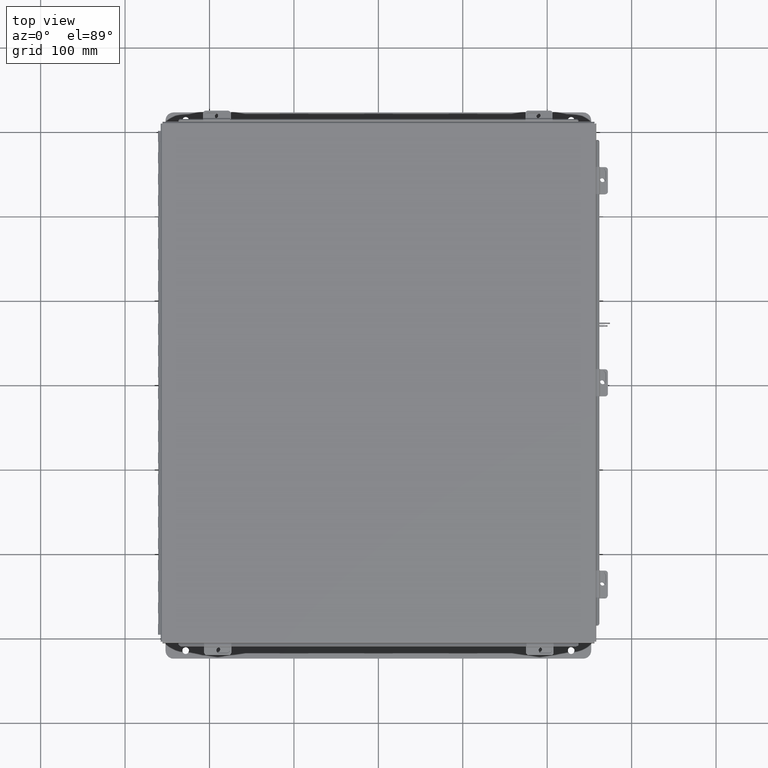
[diagram: clean part render]
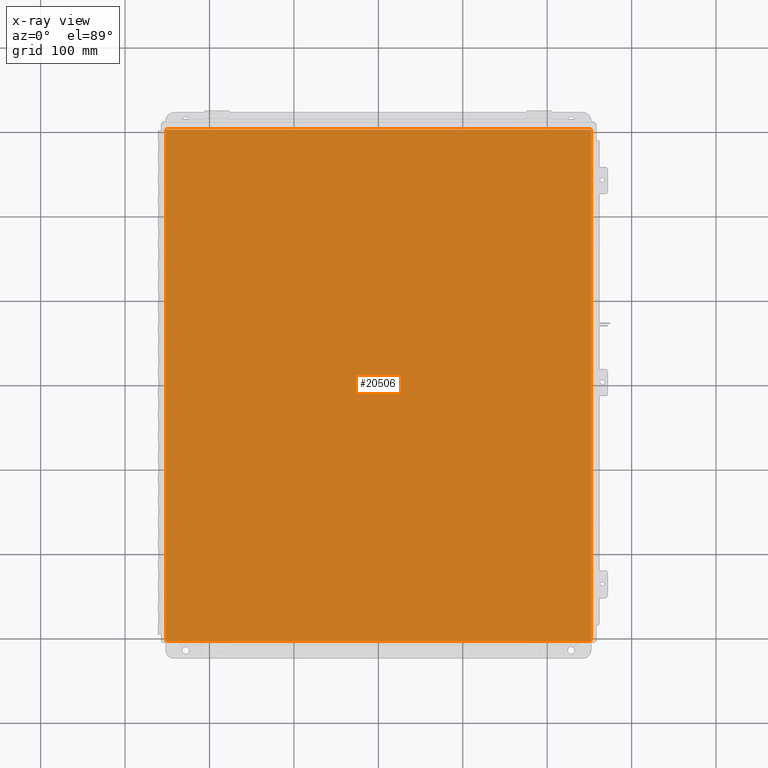
[diagram: x-ray — body ghosted, one internal face saturated and labeled with its STEP entity id]
A machine part, top view, then the same camera in x-ray: the body is ghosted and one INTERNAL B-rep face — a face not visible from any outside direction — is saturated and labeled: STEP entity #20506.
In plain terms, the highlighted planar face has unit normal (0, 0, -1).
Its self-contained STEP definition (entity closure, byte-faithful):
#657 = VECTOR ( 'NONE', #3233, 39.37007874015748100 ) ;
#1238 = CARTESIAN_POINT ( 'NONE',  ( 9.912300000000000100, 11.92529999999999600, 5.122214988120493500E-017 ) ) ;
#2686 = CARTESIAN_POINT ( 'NONE',  ( -9.912300000000000100, -11.92529999999999600, 5.122214988120493500E-017 ) ) ;
#3204 = DIRECTION ( 'NONE',  ( 0.0000000000000000000, 0.0000000000000000000, -1.000000000000000000 ) ) ;
#3233 = DIRECTION ( 'NONE',  ( -1.000000000000000000, -0.0000000000000000000, -0.0000000000000000000 ) ) ;
#3677 = FACE_OUTER_BOUND ( 'NONE', #4624, .T. ) ;
#4086 = VERTEX_POINT ( 'NONE', #22223 ) ;
#4624 = EDGE_LOOP ( 'NONE', ( #13929, #9870, #11960, #23928 ) ) ;
#4681 = EDGE_CURVE ( 'NONE', #17327, #4086, #8785, .T. ) ;
#4848 = EDGE_CURVE ( 'NONE', #5619, #4086, #10290, .T. ) ;
#5619 = VERTEX_POINT ( 'NONE', #14523 ) ;
#5722 = LINE ( 'NONE', #10796, #657 ) ;
#6150 = CARTESIAN_POINT ( 'NONE',  ( -9.912300000000000100, 11.92529999999999600, 5.122214988120493500E-017 ) ) ;
#6294 = EDGE_CURVE ( 'NONE', #5619, #11032, #5722, .T. ) ;
#6403 = VECTOR ( 'NONE', #9584, 39.37007874015748100 ) ;
#8188 = VECTOR ( 'NONE', #13692, 39.37007874015748100 ) ;
#8785 = LINE ( 'NONE', #14797, #8188 ) ;
#9584 = DIRECTION ( 'NONE',  ( -0.0000000000000000000, 1.000000000000000000, -0.0000000000000000000 ) ) ;
#9870 = ORIENTED_EDGE ( 'NONE', *, *, #6294, .T. ) ;
#10290 = LINE ( 'NONE', #1238, #19263 ) ;
#10796 = CARTESIAN_POINT ( 'NONE',  ( -10.00000000000000000, 11.92529999999999600, 0.0000000000000000000 ) ) ;
#11032 = VERTEX_POINT ( 'NONE', #6150 ) ;
#11960 = ORIENTED_EDGE ( 'NONE', *, *, #12914, .F. ) ;
#12694 = LINE ( 'NONE', #23007, #6403 ) ;
#12914 = EDGE_CURVE ( 'NONE', #17327, #11032, #12694, .T. ) ;
#13692 = DIRECTION ( 'NONE',  ( 1.000000000000000000, 0.0000000000000000000, 0.0000000000000000000 ) ) ;
#13787 = AXIS2_PLACEMENT_3D ( 'NONE', #16443, #3204, #16535 ) ;
#13929 = ORIENTED_EDGE ( 'NONE', *, *, #4848, .F. ) ;
#14523 = CARTESIAN_POINT ( 'NONE',  ( 9.912300000000000100, 11.92529999999999300, 5.122214988120493500E-017 ) ) ;
#14797 = CARTESIAN_POINT ( 'NONE',  ( -10.00000000000000000, -11.92530000000000000, 0.0000000000000000000 ) ) ;
#16443 = CARTESIAN_POINT ( 'NONE',  ( 0.0000000000000000000, 0.0000000000000000000, 0.0000000000000000000 ) ) ;
#16535 = DIRECTION ( 'NONE',  ( -1.000000000000000000, 0.0000000000000000000, -0.0000000000000000000 ) ) ;
#17327 = VERTEX_POINT ( 'NONE', #2686 ) ;
#19263 = VECTOR ( 'NONE', #20017, 39.37007874015748100 ) ;
#20017 = DIRECTION ( 'NONE',  ( -0.0000000000000000000, -1.000000000000000000, -0.0000000000000000000 ) ) ;
#20506 = ADVANCED_FACE ( 'NONE', ( #3677 ), #22259, .F. ) ;
#22223 = CARTESIAN_POINT ( 'NONE',  ( 9.912300000000000100, -11.92530000000000000, 5.122214988120493500E-017 ) ) ;
#22259 = PLANE ( 'NONE',  #13787 ) ;
#23007 = CARTESIAN_POINT ( 'NONE',  ( -9.912300000000000100, -11.92530000000000000, 5.122214988120493500E-017 ) ) ;
#23928 = ORIENTED_EDGE ( 'NONE', *, *, #4681, .T. ) ;